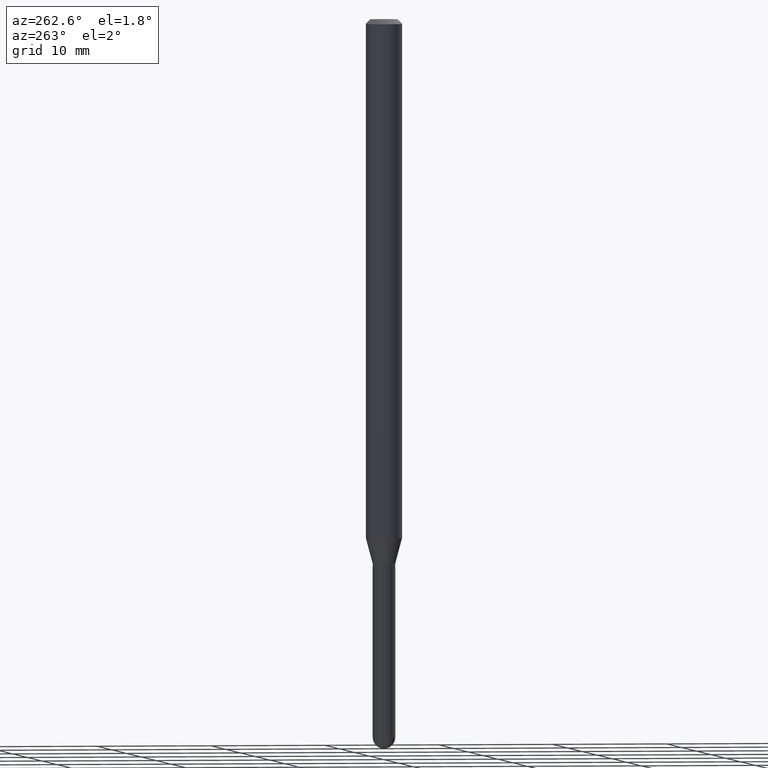
[diagram: clean part render]
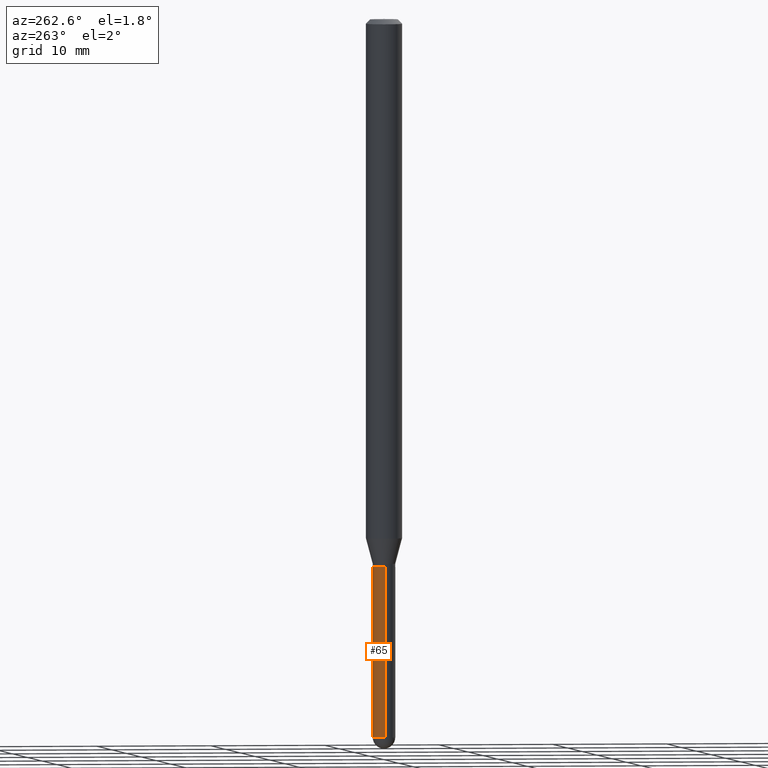
[diagram: same view with one face highlighted and labeled with its STEP entity id]
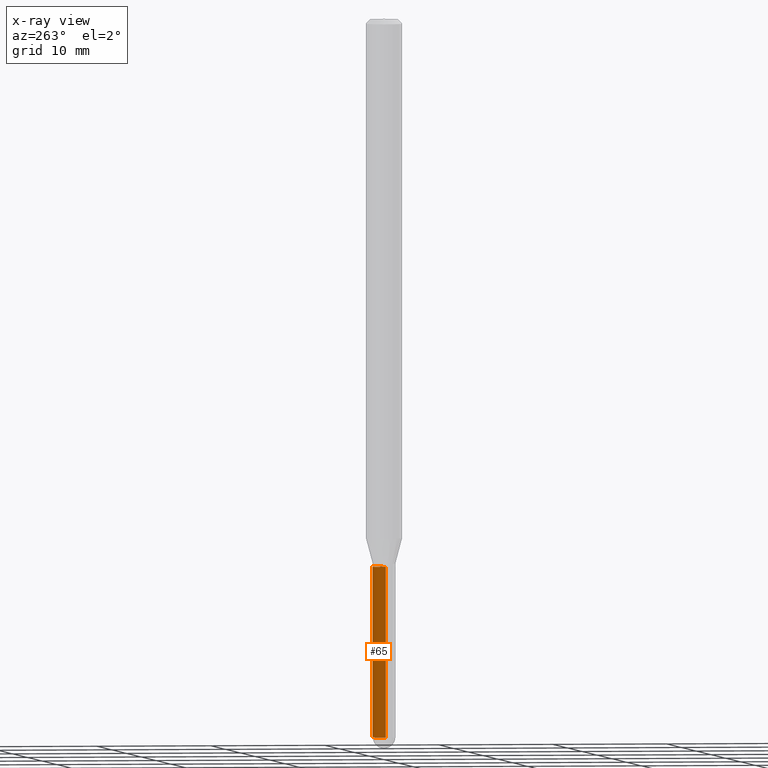
[diagram: x-ray of the same camera — body ghosted, the highlighted face saturated]
A machine part, auxiliary view. The second image highlights one B-rep face of the part: STEP entity #65.
The next image is the same camera in x-ray: the body ghosted, the highlighted face saturated — about 0% of this face is hidden behind the body in this view.
In plain terms, the highlighted cylindrical surface (edge-blend (fillet) strip) has radius 0.9906 mm, axis along (-0, 0, 1).
Its self-contained STEP definition (entity closure, byte-faithful):
#1 = DIRECTION ( 'NONE',  ( -2.445468806185136597E-29, 3.491481338843145583E-15, 1.000000000000000000 ) ) ;
#9 = VERTEX_POINT ( 'NONE', #100 ) ;
#18 = CIRCLE ( 'NONE', #305, 0.03899999999999999994 ) ;
#25 = CARTESIAN_POINT ( 'NONE',  ( 4.587699480403316722E-29, -6.550018991669741714E-15, -1.876000000000000112 ) ) ;
#30 = CARTESIAN_POINT ( 'NONE',  ( 2.723355444298231876E-16, 0.03899999999999121530, -2.460999999999999854 ) ) ;
#40 = AXIS2_PLACEMENT_3D ( 'NONE', #395, #353, #467 ) ;
#46 = EDGE_CURVE ( 'NONE', #258, #394, #399, .T. ) ;
#53 = EDGE_CURVE ( 'NONE', #394, #482, #18, .T. ) ;
#57 = AXIS2_PLACEMENT_3D ( 'NONE', #465, #1, #168 ) ;
#58 = ORIENTED_EDGE ( 'NONE', *, *, #46, .T. ) ;
#65 = ADVANCED_FACE ( 'NONE', ( #159 ), #308, .T. ) ;
#93 = VERTEX_POINT ( 'NONE', #241 ) ;
#100 = CARTESIAN_POINT ( 'NONE',  ( 0.03899999999999999994, -6.822354536099505737E-15, -1.876000000000000112 ) ) ;
#113 = EDGE_LOOP ( 'NONE', ( #290, #287, #367, #302, #58 ) ) ;
#125 = LINE ( 'NONE', #280, #470 ) ;
#127 = CARTESIAN_POINT ( 'NONE',  ( 0.03899999999999999994, -2.723355444297643682E-16, 1.901708942560414931E-30 ) ) ;
#144 = EDGE_CURVE ( 'NONE', #258, #9, #172, .T. ) ;
#159 = FACE_OUTER_BOUND ( 'NONE', #113, .T. ) ;
#168 = DIRECTION ( 'NONE',  ( 1.000000000000000000, -6.982962677686265922E-15, 4.876176775795935793E-29 ) ) ;
#172 = LINE ( 'NONE', #127, #477 ) ;
#184 = CARTESIAN_POINT ( 'NONE',  ( 0.03899999999999999994, -7.843612827711125557E-15, -2.460999999999999854 ) ) ;
#190 = EDGE_CURVE ( 'NONE', #9, #93, #273, .T. ) ;
#202 = CARTESIAN_POINT ( 'NONE',  ( -0.03899999999999999994, -7.294165616334921426E-15, -2.460999999999999854 ) ) ;
#203 = DIRECTION ( 'NONE',  ( -2.445468806185136597E-29, 3.491481338843145583E-15, 1.000000000000000000 ) ) ;
#241 = CARTESIAN_POINT ( 'NONE',  ( -0.03899999999999999994, -7.294165616334921426E-15, -1.876000000000000112 ) ) ;
#258 = VERTEX_POINT ( 'NONE', #184 ) ;
#273 = CIRCLE ( 'NONE', #438, 0.03899999999999999994 ) ;
#279 = EDGE_CURVE ( 'NONE', #482, #93, #125, .T. ) ;
#280 = CARTESIAN_POINT ( 'NONE',  ( -0.03899999999999999994, 2.771116669464390721E-16, -1.918384685199413078E-30 ) ) ;
#287 = ORIENTED_EDGE ( 'NONE', *, *, #279, .T. ) ;
#290 = ORIENTED_EDGE ( 'NONE', *, *, #53, .T. ) ;
#302 = ORIENTED_EDGE ( 'NONE', *, *, #144, .F. ) ;
#305 = AXIS2_PLACEMENT_3D ( 'NONE', #497, #203, #461 ) ;
#308 = CYLINDRICAL_SURFACE ( 'NONE', #57, 0.03899999999999999994 ) ;
#353 = DIRECTION ( 'NONE',  ( -2.445468806185136597E-29, 3.491481338843145583E-15, 1.000000000000000000 ) ) ;
#367 = ORIENTED_EDGE ( 'NONE', *, *, #190, .F. ) ;
#381 = DIRECTION ( 'NONE',  ( -2.445468806185136597E-29, 3.491481338843145583E-15, 1.000000000000000000 ) ) ;
#394 = VERTEX_POINT ( 'NONE', #30 ) ;
#395 = CARTESIAN_POINT ( 'NONE',  ( 6.018298732021620914E-29, -8.592535574892981353E-15, -2.460999999999999854 ) ) ;
#399 = CIRCLE ( 'NONE', #40, 0.03899999999999999994 ) ;
#419 = DIRECTION ( 'NONE',  ( 1.000000000000000000, -6.982962677686258033E-15, 0.000000000000000000 ) ) ;
#431 = DIRECTION ( 'NONE',  ( -2.445468806185136877E-29, 3.491481338843145188E-15, 1.000000000000000000 ) ) ;
#438 = AXIS2_PLACEMENT_3D ( 'NONE', #25, #381, #419 ) ;
#461 = DIRECTION ( 'NONE',  ( 1.000000000000000000, -6.982962677686283277E-15, 0.000000000000000000 ) ) ;
#465 = CARTESIAN_POINT ( 'NONE',  ( 0.000000000000000000, 0.000000000000000000, 0.000000000000000000 ) ) ;
#467 = DIRECTION ( 'NONE',  ( 1.000000000000000000, -6.982962677686283277E-15, 0.000000000000000000 ) ) ;
#470 = VECTOR ( 'NONE', #431, 39.37007874015748143 ) ;
#476 = DIRECTION ( 'NONE',  ( -2.445468806185136877E-29, 3.491481338843145188E-15, 1.000000000000000000 ) ) ;
#477 = VECTOR ( 'NONE', #476, 39.37007874015748143 ) ;
#482 = VERTEX_POINT ( 'NONE', #202 ) ;
#497 = CARTESIAN_POINT ( 'NONE',  ( 6.018298732021620914E-29, -8.592535574892981353E-15, -2.460999999999999854 ) ) ;